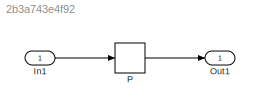
MODEL slx_2b3a743e4f92
KIND model
CONFIG AbsTol = auto
CONFIG EnableMultiTasking = off
CONFIG FixedStep = auto
CONFIG MaxStep = auto
CONFIG MinStep = auto
CONFIG RelTol = 1e-3
CONFIG SampleTimeConstraint = Unconstrained
CONFIG Solver = FixedStepDiscrete
CONFIG SolverName = FixedStepDiscrete
CONFIG StartTime = 0.0
CONFIG StopTime = 10.0
BLOCK [Inport] In1
  IconDisplay = Port number
  OutDataTypeStr = double
  PortDimensions = 1
BLOCK [Outport] Out1
  IconDisplay = Port number
BLOCK [DataTypeConversion] P
  OutDataTypeStr = int32
  RndMeth = Floor
LINE In1:1 -> P:1
LINE P:1 -> Out1:1
